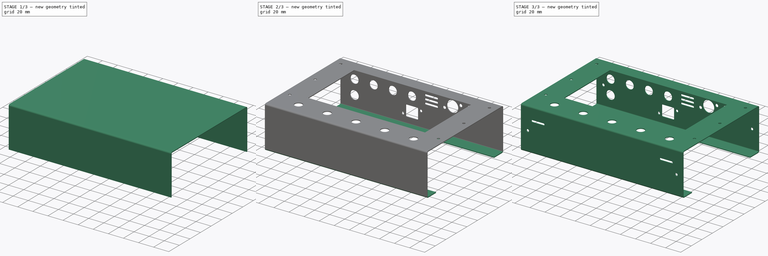
[diagram: build sequence overview — one tinted view per stage of 3, left to right]
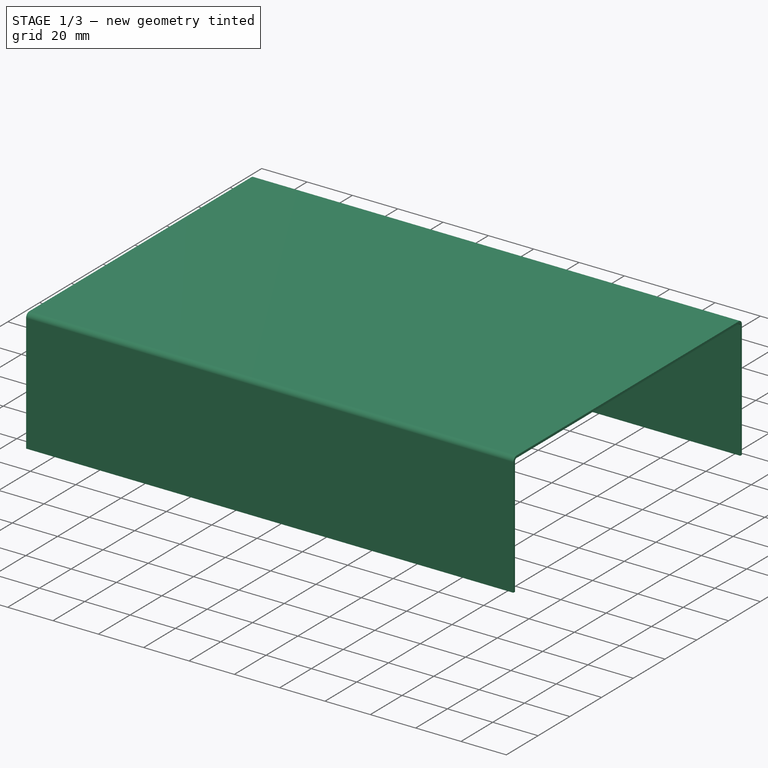
[diagram: stage 1 of 3 — iso view after this stage's code; geometry added in this stage tinted green]
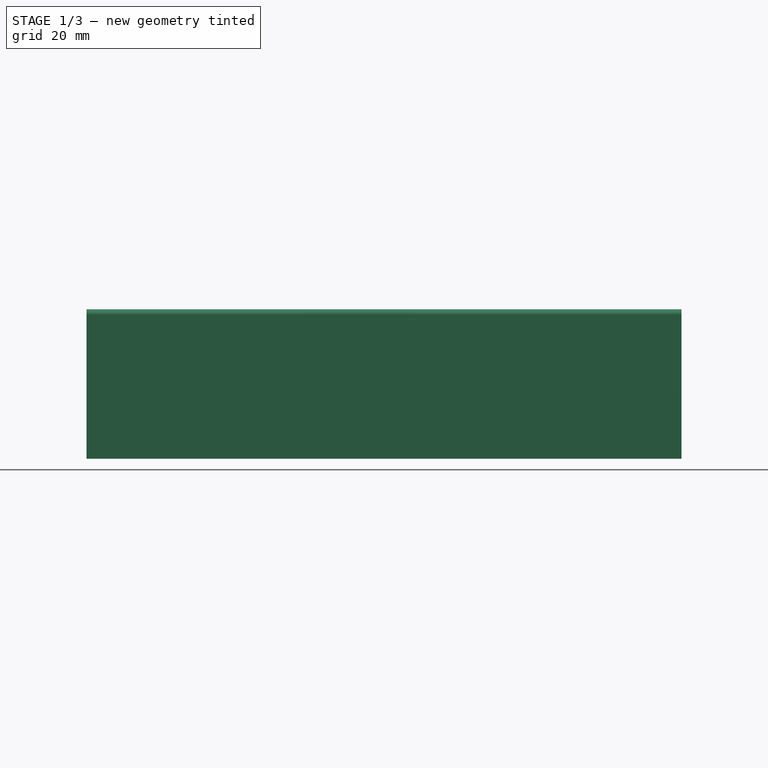
[diagram: stage 1 of 3 — front view after this stage's code; geometry added in this stage tinted green]
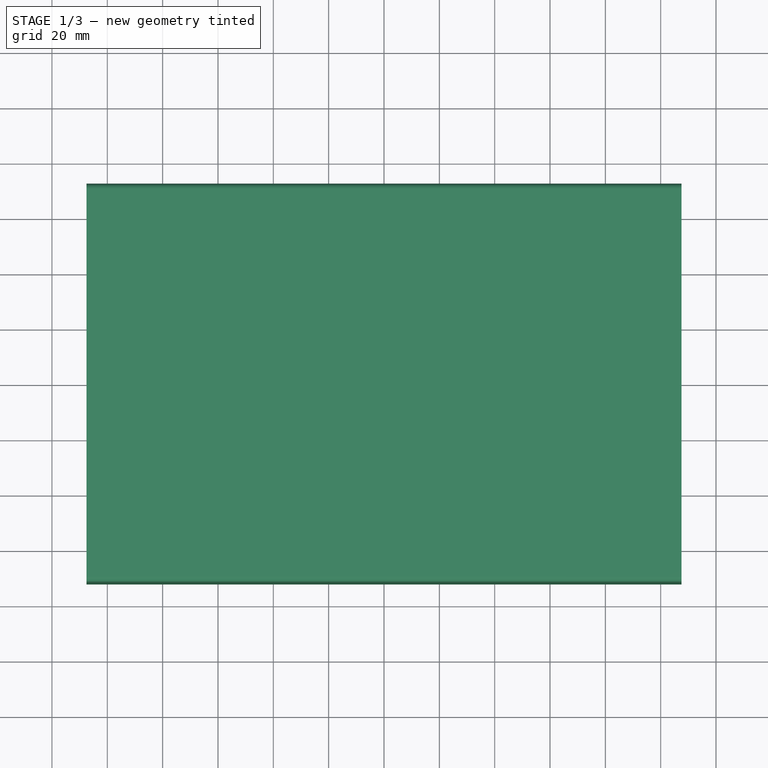
[diagram: stage 1 of 3 — top view after this stage's code; geometry added in this stage tinted green]
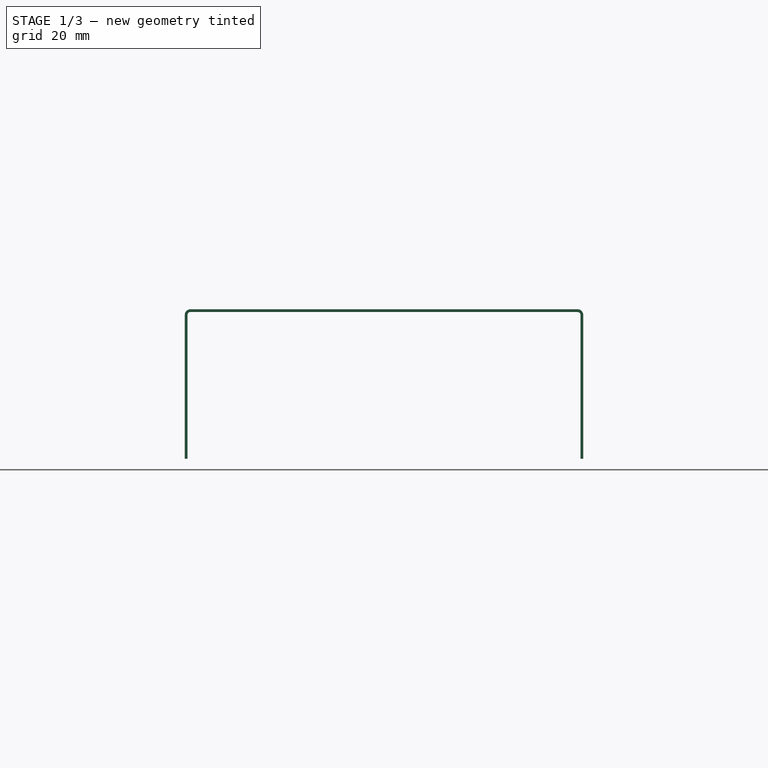
[diagram: stage 1 of 3 — right view after this stage's code; geometry added in this stage tinted green]
FCSTD DOCUMENT  (FreeCAD 0.17R13541 (Git))
Label: panel
License: All rights reserved
LicenseURL: http://en.wikipedia.org/wiki/All_rights_reserved
objects: Sketcher::SketchObject×5, PartDesign::Pocket×4, PartDesign::FeaturePython×2, PartDesign::Pad×1, PartDesign::Body×1
note: 18 computed .brp shape members not serialized (recipe doc carries the construction recipe); baked Part::Feature solids carry a one-line shape summary decoded from their .brp

FEATURE [Sketcher::SketchObject] Sketch
  MapMode = 5
  Support = -> [XY_Plane]
  sketch-geometry (4):
    g0: LineSegment StartX=-107.5 StartY=70 StartZ=0 EndX=107.5 EndY=70 EndZ=0
    g1: LineSegment StartX=107.5 StartY=70 StartZ=0 EndX=107.5 EndY=-70 EndZ=0
    g2: LineSegment StartX=107.5 StartY=-70 StartZ=0 EndX=-107.5 EndY=-70 EndZ=0
    g3: LineSegment StartX=-107.5 StartY=-70 StartZ=0 EndX=-107.5 EndY=70 EndZ=0
  constraints (12):
    c: Coincident(g0,g1)
    c: Coincident(g1,g2)
    c: Coincident(g2,g3)
    c: Coincident(g3,g0)
    c: Horizontal(g0)
    c: Horizontal(g2)
    c: Vertical(g1)
    c: Vertical(g3)
    c: Distance(g0) = 215
    c: DistanceX(g-2,g0) = 107.5
    c: Distance(g1) = 140
    c: DistanceY(g-1,g0) = 70
FEATURE [PartDesign::Pad] Pad
  Length = 1
  Length2 = 130
  Profile = -> Sketch
  Reversed = true
  Type = 0
FEATURE [PartDesign::FeaturePython] Bend  label="Bend-height"  # WARN: FeaturePython — macro-defined, semantics opaque (R4)
  AutoMiter = true
  BaseFeature = -> Pad
  BendType = 0
  LengthList = [52]
  RelifFactor = 0.7
  UseRelifFactor = false
  angle = 90
  baseObject = -> Pad [Edge3,Edge9]
  bendAList = [90]
  extend1 = 0
  extend2 = 0
  gap1 = 0
  gap2 = 0
  invert = false
  kfactor = 0.5
  length = 52
  miterangle1 = 0
  miterangle2 = 0
  offset = 0
  radius = 1
  reliefType = 0
  reliefd = 1
  reliefw = 0.8
  sketchflip = false
  sketchinvert = false
  unfold = false
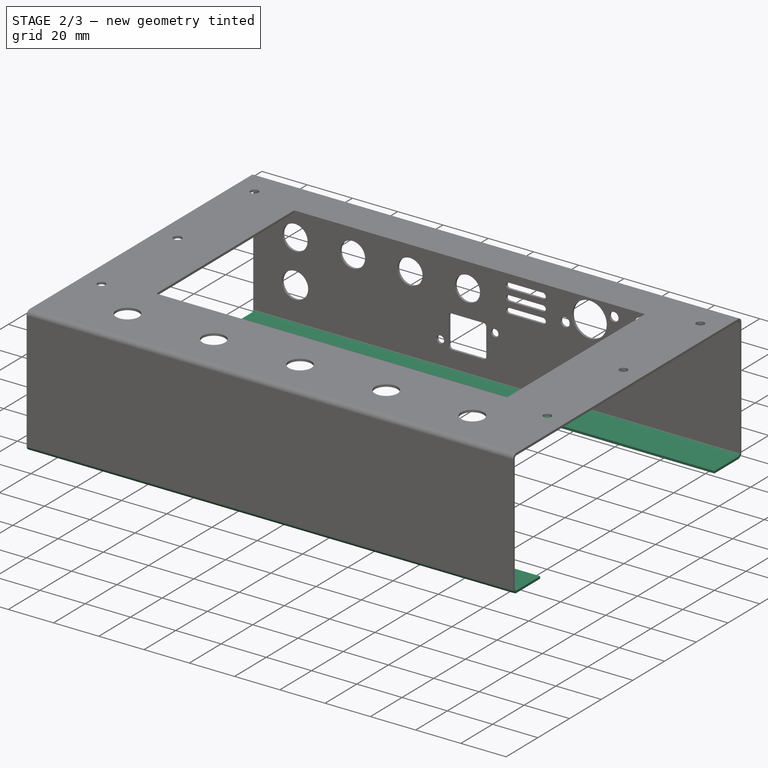
[diagram: stage 2 of 3 — iso view after this stage's code; geometry added in this stage tinted green]
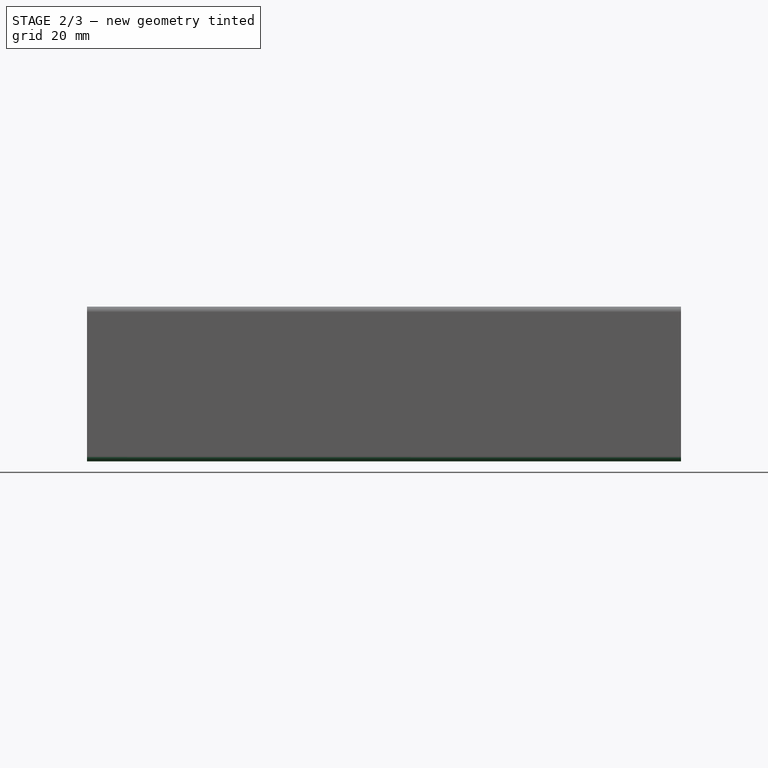
[diagram: stage 2 of 3 — front view after this stage's code; geometry added in this stage tinted green]
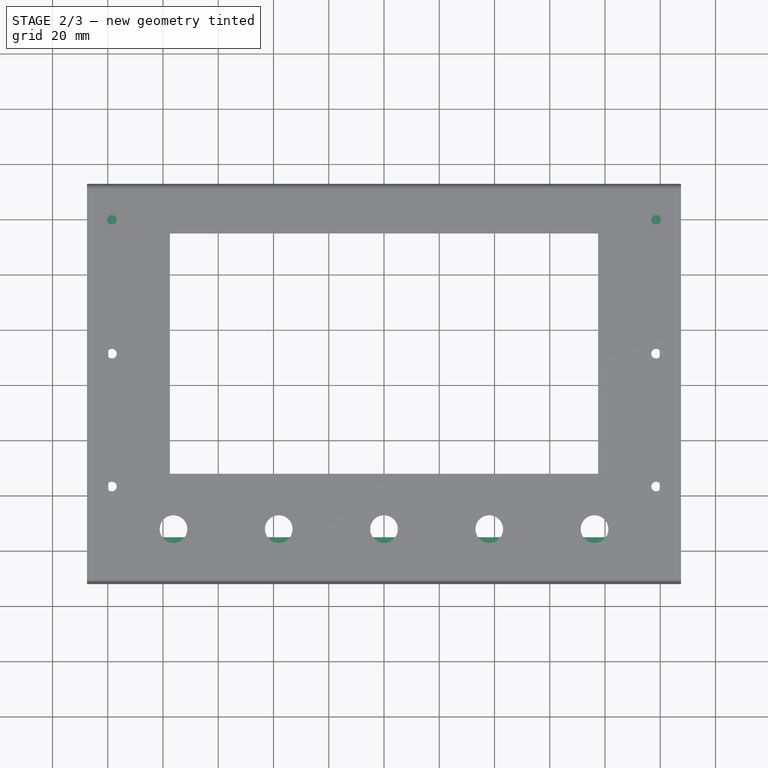
[diagram: stage 2 of 3 — top view after this stage's code; geometry added in this stage tinted green]
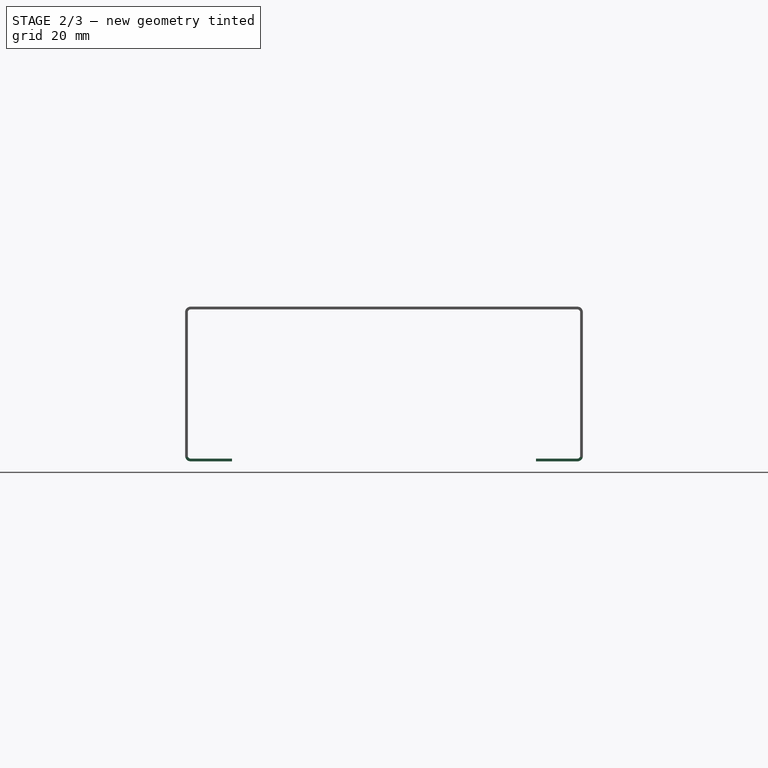
[diagram: stage 2 of 3 — right view after this stage's code; geometry added in this stage tinted green]
FEATURE [PartDesign::FeaturePython] Bend001  label="Bend-bottom"  # WARN: FeaturePython — macro-defined, semantics opaque (R4)
  AutoMiter = true
  BaseFeature = -> Bend
  BendType = 0
  LengthList = [15]
  RelifFactor = 0.7
  UseRelifFactor = false
  angle = 90
  baseObject = -> Bend [Edge4,Edge44]
  bendAList = [90]
  extend1 = 0
  extend2 = 0
  gap1 = 0
  gap2 = 0
  invert = false
  kfactor = 0.5
  length = 15
  miterangle1 = 0
  miterangle2 = 0
  offset = 0
  radius = 1
  reliefType = 0
  reliefd = 1
  reliefw = 0.8
  sketchflip = false
  sketchinvert = false
  unfold = false
FEATURE [Sketcher::SketchObject] Sketch001  label="holes-top"
  ExternalGeometry = -> [Bend001]
  MapMode = 5
  Support = -> [Bend001]
  sketch-geometry (16):
    g0: LineSegment StartX=-77.5 StartY=54 StartZ=0 EndX=77.5 EndY=54 EndZ=0
    g1: LineSegment StartX=77.5 StartY=54 StartZ=0 EndX=77.5 EndY=-33 EndZ=0
    g2: LineSegment StartX=77.5 StartY=-33 StartZ=0 EndX=-77.5 EndY=-33 EndZ=0
    g3: LineSegment StartX=-77.5 StartY=-33 StartZ=0 EndX=-77.5 EndY=54 EndZ=0
    g4: Circle CenterX=98.5 CenterY=58.95 CenterZ=0 NormalX=0 NormalY=0 NormalZ=1 AngleXU=0 Radius=1.75
    g5: Circle CenterX=-98.5 CenterY=58.95 CenterZ=0 NormalX=0 NormalY=0 NormalZ=1 AngleXU=0 Radius=1.75
    g6: Circle CenterX=-98.5 CenterY=-37.6 CenterZ=0 NormalX=0 NormalY=0 NormalZ=1 AngleXU=0 Radius=1.75
    g7: Circle CenterX=98.5 CenterY=-37.6 CenterZ=0 NormalX=0 NormalY=0 NormalZ=1 AngleXU=0 Radius=1.75
    g8: Circle CenterX=0 CenterY=-53 CenterZ=0 NormalX=0 NormalY=0 NormalZ=1 AngleXU=0 Radius=5
    g9: Circle CenterX=38.1 CenterY=-53 CenterZ=0 NormalX=0 NormalY=0 NormalZ=1 AngleXU=0 Radius=5
    g10: Circle CenterX=76.2 CenterY=-53 CenterZ=0 NormalX=0 NormalY=0 NormalZ=1 AngleXU=0 Radius=5
    g11: Circle CenterX=-38.1 CenterY=-53 CenterZ=0 NormalX=0 NormalY=0 NormalZ=1 AngleXU=0 Radius=5
    g12: Circle CenterX=-76.2 CenterY=-53 CenterZ=0 NormalX=0 NormalY=0 NormalZ=1 AngleXU=0 Radius=5
    g13: LineSegment [constr] StartX=-76.2 StartY=-53 StartZ=0 EndX=76.2 EndY=-53 EndZ=0
    g14: Circle CenterX=-98.5 CenterY=10.5 CenterZ=0 NormalX=0 NormalY=0 NormalZ=1 AngleXU=0 Radius=1.75
    g15: Circle CenterX=98.5 CenterY=10.5 CenterZ=0 NormalX=0 NormalY=0 NormalZ=1 AngleXU=0 Radius=1.75
  constraints (47):
    c: Coincident(g0,g1)
    c: Coincident(g1,g2)
    c: Coincident(g2,g3)
    c: Coincident(g3,g0)
    c: Horizontal(g0)
    c: Horizontal(g2)
    c: Vertical(g1)
    c: Vertical(g3)
    c: Distance(g0) = 155
    c: Distance(g1) = 87
    c: DistanceX(g-2,g0) = 77.5
    c: Distance(g2,g-3) = 37
    c: Radius(g4) = 1.75
    c: Equal(g4,g5)
    c: Equal(g5,g6)
    c: Vertical(g5,g6)
    c: Distance(g6,g-3) = 32.4
    c: Vertical(g7,g4)
    c: Horizontal(g7,g6)
    c: Equal(g7,g5)
    c: PointOnObject(g8,g-2)
    c: Distance(g8,g-3) = 17
    c: Radius(g8) = 5
    c: Equal(g12,g11)
    c: Equal(g11,g8)
    c: Equal(g8,g9)
    c: Equal(g9,g10)
    c: Coincident(g13,g12)
    c: Coincident(g13,g10)
    c: Horizontal(g13)
    c: PointOnObject(g9,g13)
    c: PointOnObject(g8,g13)
    c: PointOnObject(g11,g13)
    c: Distance(g12,g11) = 38.1
    c: Distance(g11,g8) = 38.1
    c: Distance(g8,g9) = 38.1
    c: Distance(g9,g10) = 38.1
    c: Distance(g5,g-3) = 128.95
    c: Horizontal(g4,g5)
    c: Vertical(g14,g5)
    c: Equal(g14,g5)
    c: Distance(g14,g0) = 43.5
    c: Vertical(g15,g4)
    c: Horizontal(g15,g14)
    c: Equal(g15,g14)
    c: Distance(g5,g-4) = 9
    c: Distance(g4,g-5) = 9
FEATURE [PartDesign::Pocket] Pocket  label="Pocket-top"
  BaseFeature = -> Bend001
  Length = 5
  Length2 = 100
  Profile = -> Sketch001
  Type = 0
FEATURE [Sketcher::SketchObject] Sketch002
  ExternalGeometry = -> [Pocket]
  MapMode = 5
  Placement = pos=(0,72,0) rot=(0,0.707107,0.707107;3.14159rad)
  Support = -> [Pocket]
  sketch-geometry (47):
    g0: Circle CenterX=89 CenterY=-20.5 CenterZ=0 NormalX=0 NormalY=0 NormalZ=1 AngleXU=0 Radius=5.5
    g1: Circle CenterX=63.6 CenterY=-20.5 CenterZ=0 NormalX=0 NormalY=0 NormalZ=1 AngleXU=0 Radius=5.5
    g2: Circle CenterX=38.2 CenterY=-20.5 CenterZ=0 NormalX=0 NormalY=0 NormalZ=1 AngleXU=0 Radius=5.5
    g3: Circle CenterX=12.8 CenterY=-20.5 CenterZ=0 NormalX=0 NormalY=0 NormalZ=1 AngleXU=0 Radius=5.5
    g4: LineSegment [constr] StartX=12.8 StartY=-20.5 StartZ=0 EndX=38.2 EndY=-20.5 EndZ=0
    g5: LineSegment [constr] StartX=38.2 StartY=-20.5 StartZ=0 EndX=63.6 EndY=-20.5 EndZ=0
    g6: LineSegment [constr] StartX=63.6 StartY=-20.5 StartZ=0 EndX=89 EndY=-20.5 EndZ=0
    g7: Circle CenterX=89 CenterY=-39.5 CenterZ=0 NormalX=0 NormalY=0 NormalZ=1 AngleXU=0 Radius=5.75
    g8: LineSegment [constr] StartX=89 StartY=-20.5 StartZ=0 EndX=89 EndY=-39.5 EndZ=0
    g9: Circle CenterX=-41.1 CenterY=-18.4 CenterZ=0 NormalX=0 NormalY=0 NormalZ=1 AngleXU=0 Radius=7.6
    g10: Circle CenterX=-66.5 CenterY=-18.4 CenterZ=0 NormalX=0 NormalY=0 NormalZ=1 AngleXU=0 Radius=7.6
    g11: Circle CenterX=-77.3065 CenterY=-14.4668 CenterZ=0 NormalX=0 NormalY=0 NormalZ=1 AngleXU=0 Radius=2
    g12: Circle CenterX=-55.6935 CenterY=-22.3332 CenterZ=0 NormalX=0 NormalY=0 NormalZ=1 AngleXU=0 Radius=2
    g13: Circle CenterX=-51.9065 CenterY=-14.4668 CenterZ=0 NormalX=0 NormalY=0 NormalZ=1 AngleXU=0 Radius=2
    g14: Circle CenterX=-30.2935 CenterY=-22.3332 CenterZ=0 NormalX=0 NormalY=0 NormalZ=1 AngleXU=0 Radius=2
    g15: LineSegment [constr] StartX=-77.3065 StartY=-14.4668 StartZ=0 EndX=-55.6935 EndY=-22.3332 EndZ=0
    g16: LineSegment [constr] StartX=-51.9065 StartY=-14.4668 StartZ=0 EndX=-30.2935 EndY=-22.3332 EndZ=0
    g17: LineSegment [constr] StartX=-66.5 StartY=-18.4 StartZ=0 EndX=-41.1 EndY=-18.4 EndZ=0
    g18: LineSegment [constr] StartX=-41.1 StartY=-26 StartZ=0 EndX=12.8 EndY=-26 EndZ=0
    g19: Circle CenterX=0.8 CenterY=-35 CenterZ=0 NormalX=0 NormalY=0 NormalZ=1 AngleXU=0 Radius=1.625
    g20: Circle CenterX=24.8 CenterY=-44 CenterZ=0 NormalX=0 NormalY=0 NormalZ=1 AngleXU=0 Radius=1.625
    g21: LineSegment StartX=5.905 StartY=-32.225 StartZ=0 EndX=19.695 EndY=-32.225 EndZ=0
    g22: LineSegment StartX=21.075 StartY=-33.605 StartZ=0 EndX=21.075 EndY=-45.395 EndZ=0
    g23: LineSegment StartX=19.695 StartY=-46.775 StartZ=0 EndX=5.905 EndY=-46.775 EndZ=0
    g24: LineSegment StartX=4.525 StartY=-45.395 StartZ=0 EndX=4.525 EndY=-33.605 EndZ=0
    g25: ArcOfCircle CenterX=5.905 CenterY=-33.605 CenterZ=0 NormalX=0 NormalY=0 NormalZ=1 AngleXU=0 Radius=1.38 StartAngle=1.5708 EndAngle=3.14159
    g26: ArcOfCircle CenterX=5.905 CenterY=-45.395 CenterZ=0 NormalX=0 NormalY=0 NormalZ=1 AngleXU=0 Radius=1.38 StartAngle=3.14159 EndAngle=4.71239
    g27: ArcOfCircle CenterX=19.695 CenterY=-45.395 CenterZ=0 NormalX=0 NormalY=0 NormalZ=1 AngleXU=0 Radius=1.38 StartAngle=4.71239 EndAngle=6.28319
    g28: ArcOfCircle CenterX=19.695 CenterY=-33.605 CenterZ=0 NormalX=0 NormalY=0 NormalZ=1 AngleXU=0 Radius=1.38 StartAngle=0 EndAngle=1.5708
    g29: LineSegment [constr] StartX=-107.5 StartY=-39.5 StartZ=0 EndX=107.5 EndY=-39.5 EndZ=0
    g30: LineSegment [constr] StartX=-20.5 StartY=-19.45 StartZ=0 EndX=-5.5 EndY=-19.45 EndZ=0
    g31: LineSegment [constr] StartX=-20.5 StartY=-24.45 StartZ=0 EndX=-5.5 EndY=-24.45 EndZ=0
    g32: ArcOfCircle CenterX=-20.5 CenterY=-14.45 CenterZ=0 NormalX=0 NormalY=0 NormalZ=1 AngleXU=0 Radius=1.25 StartAngle=1.5708 EndAngle=4.71239
    g33: ArcOfCircle CenterX=-20.5 CenterY=-19.45 CenterZ=0 NormalX=0 NormalY=0 NormalZ=1 AngleXU=0 Radius=1.25 StartAngle=1.5708 EndAngle=4.71239
    g34: ArcOfCircle CenterX=-20.5 CenterY=-24.45 CenterZ=0 NormalX=0 NormalY=0 NormalZ=1 AngleXU=0 Radius=1.25 StartAngle=1.5708 EndAngle=4.71239
    g35: ArcOfCircle CenterX=-5.5 CenterY=-14.45 CenterZ=0 NormalX=0 NormalY=0 NormalZ=1 AngleXU=0 Radius=1.25 StartAngle=4.71239 EndAngle=7.85398
    g36: ArcOfCircle CenterX=-5.5 CenterY=-19.45 CenterZ=0 NormalX=0 NormalY=0 NormalZ=1 AngleXU=0 Radius=1.25 StartAngle=4.71239 EndAngle=7.85398
    g37: ArcOfCircle CenterX=-5.5 CenterY=-24.45 CenterZ=0 NormalX=0 NormalY=0 NormalZ=1 AngleXU=0 Radius=1.25 StartAngle=4.71239 EndAngle=7.85398
    g38: LineSegment StartX=-20.5 StartY=-13.2 StartZ=0 EndX=-5.5 EndY=-13.2 EndZ=0
    g39: LineSegment StartX=-20.5 StartY=-15.7 StartZ=0 EndX=-5.5 EndY=-15.7 EndZ=0
    g40: LineSegment StartX=-20.5 StartY=-18.2 StartZ=0 EndX=-5.5 EndY=-18.2 EndZ=0
    g41: LineSegment StartX=-20.5 StartY=-20.7 StartZ=0 EndX=-5.5 EndY=-20.7 EndZ=0
    g42: LineSegment StartX=-20.5 StartY=-23.2 StartZ=0 EndX=-5.5 EndY=-23.2 EndZ=0
    g43: LineSegment StartX=-20.5 StartY=-25.7 StartZ=0 EndX=-5.5 EndY=-25.7 EndZ=0
    g44: LineSegment [constr] StartX=-13 StartY=-14.45 StartZ=0 EndX=-13 EndY=-24.45 EndZ=0
    g45: LineSegment [constr] StartX=-13 StartY=-14.45 StartZ=0 EndX=-20.5 EndY=-14.45 EndZ=0
    g46: LineSegment [constr] StartX=-13 StartY=-14.45 StartZ=0 EndX=-5.5 EndY=-14.45 EndZ=0
  constraints (135):
    c: Radius(g3) = 5.5
    c: Equal(g3,g2)
    c: Equal(g3,g1)
    c: Equal(g3,g0)
    c: Horizontal(g4)
    c: Coincident(g5,g4)
    c: Coincident(g3,g4)
    c: Coincident(g2,g4)
    c: Coincident(g1,g5)
    c: Coincident(g1,g6)
    c: Coincident(g0,g6)
    c: Horizontal(g5)
    c: Horizontal(g6)
    c: Equal(g4,g5)
    c: Equal(g5,g6)
    c: Distance(g4) = 25.4
    c: DistanceX(g0,g-3) = 18.5
    c: DistanceY(g0,g-3) = 18.5
    c: Radius(g7) = 5.75
    c: Coincident(g0,g8)
    c: Coincident(g7,g8)
    c: Vertical(g8)
    c: Distance(g8) = 19
    c: Radius(g11) = 2
    c: Equal(g11,g12)
    c: Equal(g11,g13)
    c: Equal(g11,g14)
    c: PointOnObject(g10,g15)
    c: Coincident(g15,g11)
    c: Coincident(g15,g12)
    c: Distance(g11,g12) = 23
    c: Distance(g10,g11) = 11.5
    c: Coincident(g16,g14)
    c: Coincident(g16,g13)
    c: PointOnObject(g9,g16)
    c: Distance(g14,g13) = 23
    c: Distance(g9,g14) = 11.5
    c: Parallel(g15,g16)
    c: Coincident(g17,g9)
    c: Coincident(g17,g10)
    c: Horizontal(g17)
    c: Radius(g9) = 7.6
    c: Equal(g9,g10)
    c: Equal(g4,g17)
    c: Horizontal(g18)
    c: Tangent(g18,g3)
    c: DistanceX(g-3,g10) = 41
    c: Horizontal(g21)
    c: Horizontal(g23)
    c: Vertical(g22)
    c: Vertical(g24)
    c: Tangent(g21,g25) = 1.5708
    c: Tangent(g24,g25) = 1.5708
    c: Tangent(g23,g26) = 1.5708
    c: Tangent(g24,g26) = 1.5708
    c: Tangent(g22,g27) = 1.5708
    c: Tangent(g23,g27) = 1.5708
    c: Tangent(g21,g28) = 1.5708
    c: Tangent(g22,g28) = 1.5708
    c: Radius(g25) = 1.38
    c: Equal(g25,g28)
    c: Equal(g25,g27)
    c: Equal(g25,g26)
    c: Distance(g24,g22) = 16.55
    c: Distance(g21,g23) = 14.55
    c: DistanceX(g19,g20) = 24
    c: Radius(g19) = 1.625
    c: Equal(g19,g20)
    c: DistanceY(g20,g19) = 9
    c: DistanceX(g22,g20) = 3.725
    c: DistanceY(g23,g20) = 2.775
    c: Vertical(g18,g3)
    c: Vertical(g18,g9)
    c: Tangent(g18,g9) = -1.5708
    c: Angle(g17,g16) = 2.79253
    c: Horizontal(g29)
    c: PointOnObject(g7,g29)
    c: Distance(g21,g29) = 7.275
    c: DistanceX(g3,g22) = 8.275
    c: Vertical(g30,g31)
    c: Vertical(g35,g30)
    c: Horizontal(g31)
    c: Horizontal(g30)
    c: Distance(g32,g30) = 5
    c: Distance(g30,g31) = 5
    c: Coincident(g35,g38)
    c: Coincident(g32,g39)
    c: Coincident(g32,g38)
    c: Horizontal(g38)
    c: Horizontal(g39)
    c: Horizontal(g40)
    c: Horizontal(g41)
    c: Horizontal(g42)
    c: Horizontal(g43)
    c: Vertical(g32,g32)
    c: Vertical(g32,g33)
    c: Vertical(g33,g33)
    c: Vertical(g33,g33)
    c: Vertical(g33,g34)
    c: Vertical(g34,g34)
    c: Vertical(g34,g38)
    c: Vertical(g35,g35)
    c: Vertical(g35,g36)
    c: Coincident(g36,g40)
    c: Coincident(g36,g41)
    c: Coincident(g35,g39)
    c: Coincident(g37,g42)
    c: Coincident(g37,g43)
    c: Vertical(g36,g36)
    c: Vertical(g36,g37)
    c: Vertical(g37,g31)
    c: Vertical(g31,g37)
    c: Coincident(g30,g36)
    c: Coincident(g31,g37)
    c: Vertical(g35,g36)
    c: Coincident(g33,g40)
    c: Coincident(g33,g41)
    c: Coincident(g34,g42)
    c: Coincident(g34,g43)
    c: Radius(g32) = 1.25
    c: Equal(g32,g33)
    c: Equal(g32,g34)
    c: Coincident(g30,g33)
    c: Coincident(g31,g34)
    c: DistanceY(g30,g9) = 1.05
    c: PointOnObject(g44,g31)
    c: Vertical(g44)
    c: Coincident(g44,g45)
    c: Coincident(g44,g46)
    c: Coincident(g35,g46)
    c: Coincident(g32,g45)
    c: Horizontal(g45)
    c: Equal(g45,g46)
    c: DistanceX(g-2,g44) = -13
    c: DistanceX(g32,g35) = 15  'vent-width'
FEATURE [PartDesign::Pocket] Pocket001  label="Pocket-back"
  BaseFeature = -> Pocket
  Length = 5
  Length2 = 100
  Profile = -> Sketch002
  Type = 0
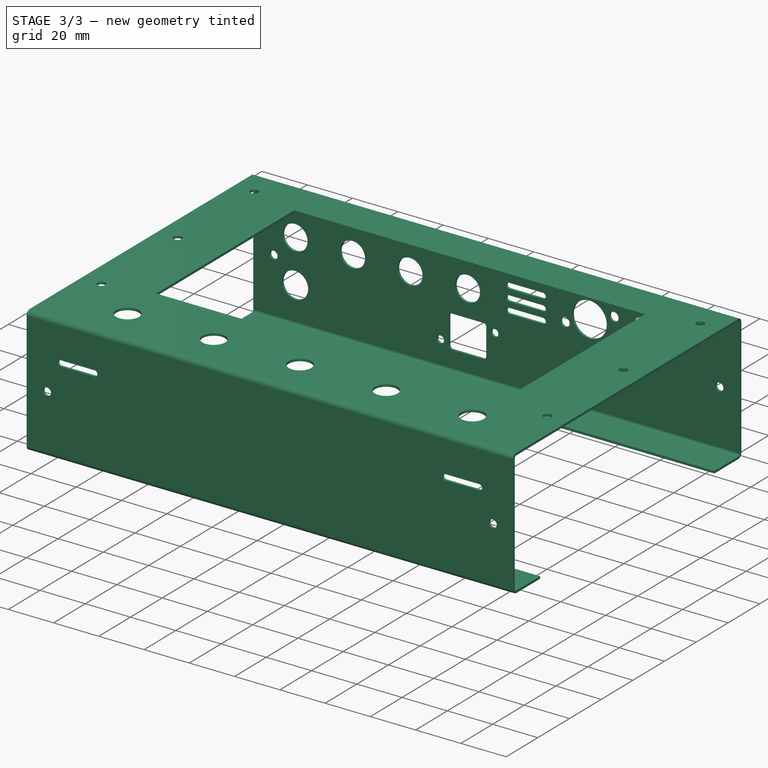
[diagram: stage 3 of 3 — iso view after this stage's code; geometry added in this stage tinted green]
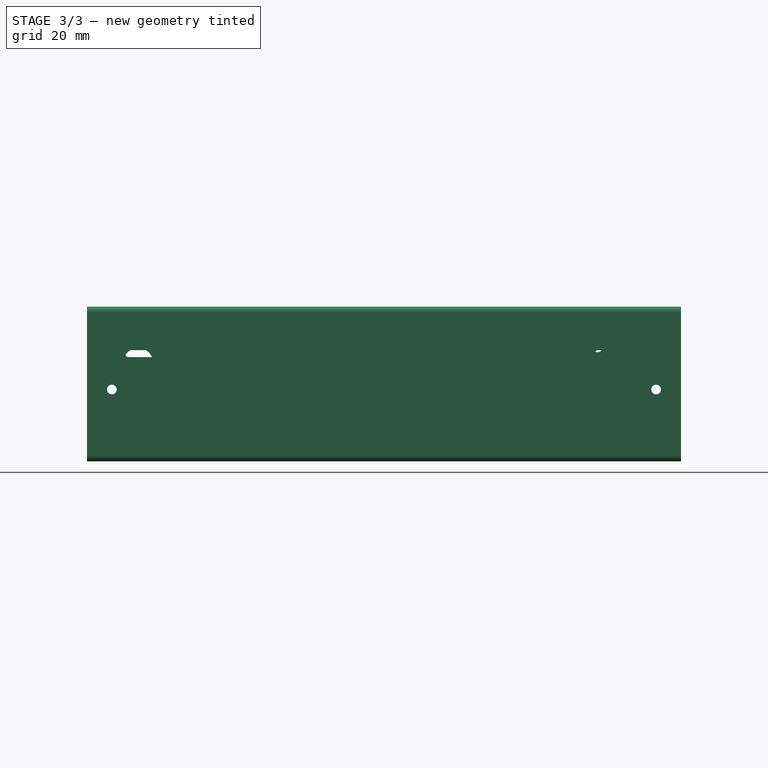
[diagram: stage 3 of 3 — front view after this stage's code; geometry added in this stage tinted green]
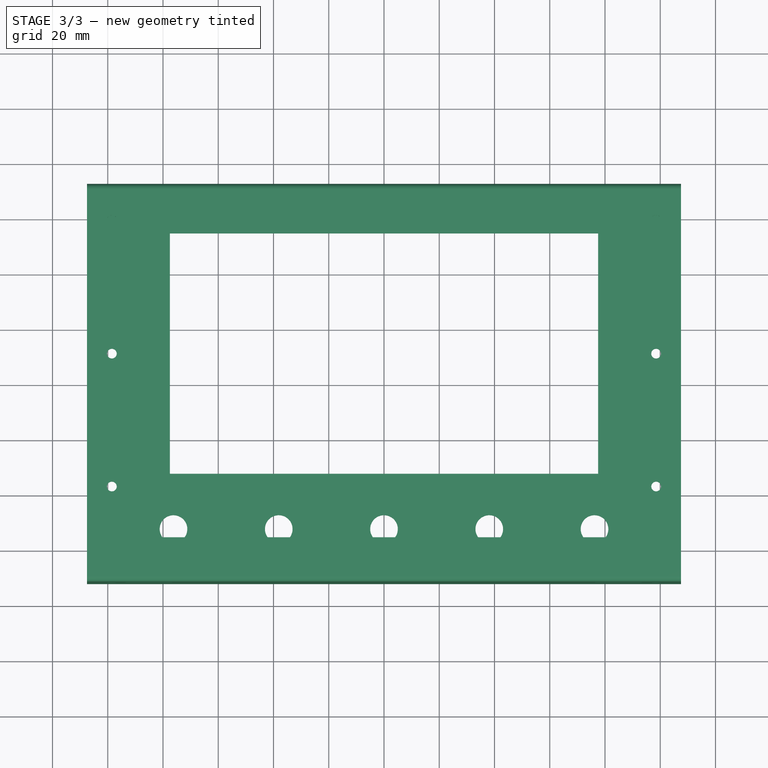
[diagram: stage 3 of 3 — top view after this stage's code; geometry added in this stage tinted green]
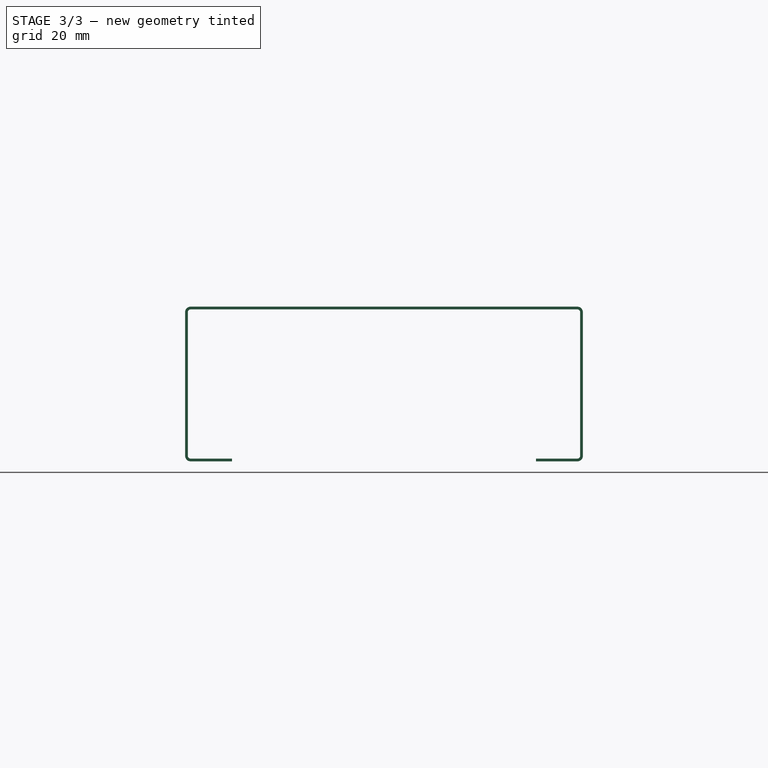
[diagram: stage 3 of 3 — right view after this stage's code; geometry added in this stage tinted green]
FEATURE [Sketcher::SketchObject] Sketch003
  ExternalGeometry = -> [Pocket001]
  MapMode = 5
  Placement = pos=(0,-72,0) rot=(1,0,0;1.5708rad)
  Support = -> [Pocket001]
  sketch-geometry (9):
    g0: LineSegment [constr] StartX=107.5 StartY=-17 StartZ=0 EndX=-107.5 EndY=-17 EndZ=0
    g1: ArcOfCircle CenterX=77.5 CenterY=-17 CenterZ=0 NormalX=0 NormalY=0 NormalZ=1 AngleXU=0 Radius=1.25 StartAngle=1.5708 EndAngle=4.71239
    g2: ArcOfCircle CenterX=92.5 CenterY=-17 CenterZ=0 NormalX=0 NormalY=0 NormalZ=1 AngleXU=0 Radius=1.25 StartAngle=4.71239 EndAngle=7.85398
    g3: ArcOfCircle CenterX=-92.5 CenterY=-17 CenterZ=0 NormalX=0 NormalY=0 NormalZ=1 AngleXU=0 Radius=1.25 StartAngle=1.5708 EndAngle=4.71239
    g4: ArcOfCircle CenterX=-77.5 CenterY=-17 CenterZ=0 NormalX=0 NormalY=0 NormalZ=1 AngleXU=0 Radius=1.25 StartAngle=4.71239 EndAngle=7.85398
    g5: LineSegment StartX=-92.5 StartY=-15.75 StartZ=0 EndX=-77.5 EndY=-15.75 EndZ=0
    g6: LineSegment StartX=-92.5 StartY=-18.25 StartZ=0 EndX=-77.5 EndY=-18.25 EndZ=0
    g7: LineSegment StartX=77.5 StartY=-15.75 StartZ=0 EndX=92.5 EndY=-15.75 EndZ=0
    g8: LineSegment StartX=77.5 StartY=-18.25 StartZ=0 EndX=92.5 EndY=-18.25 EndZ=0
  constraints (36):
    c: Horizontal(g0)
    c: Coincident(g1,g7)
    c: Coincident(g1,g8)
    c: Coincident(g2,g7)
    c: Coincident(g2,g8)
    c: Coincident(g3,g5)
    c: Coincident(g3,g6)
    c: Coincident(g4,g5)
    c: Coincident(g4,g6)
    c: Vertical(g4,g4)
    c: Vertical(g4,g4)
    c: Vertical(g4,g5)
    c: Vertical(g5,g6)
    c: Vertical(g3,g3)
    c: Vertical(g3,g5)
    c: Vertical(g2,g2)
    c: Vertical(g2,g2)
    c: Vertical(g2,g7)
    c: Vertical(g7,g8)
    c: Vertical(g1,g1)
    c: Vertical(g1,g7)
    c: PointOnObject(g4,g0)
    c: PointOnObject(g3,g0)
    c: PointOnObject(g1,g0)
    c: PointOnObject(g2,g0)
    c: Horizontal(g7)
    c: Horizontal(g5)
    c: Radius(g3) = 1.25
    c: Equal(g3,g1)
    c: Distance(g3,g4) = 15
    c: Distance(g1,g2) = 15
    c: PointOnObject(g0,g-4)
    c: PointOnObject(g0,g-3)
    c: Distance(g0,g-3) = 15
    c: Distance(g2,g-3) = 15
    c: Distance(g3,g-4) = 15
FEATURE [PartDesign::Pocket] Pocket002  label="Pocket-front"
  BaseFeature = -> Pocket001
  Length = 5
  Length2 = 100
  Profile = -> Sketch003
  Type = 0
FEATURE [Sketcher::SketchObject] Sketch004
  ExternalGeometry = -> [Pocket002]
  MapMode = 5
  Placement = pos=(0,-72,0) rot=(1,0,0;1.5708rad)
  Support = -> [Pocket002]
  sketch-geometry (3):
    g0: Circle CenterX=-98.5 CenterY=-30 CenterZ=0 NormalX=0 NormalY=0 NormalZ=1 AngleXU=0 Radius=1.75
    g1: Circle CenterX=98.5 CenterY=-30 CenterZ=0 NormalX=0 NormalY=0 NormalZ=1 AngleXU=0 Radius=1.75
    g2: LineSegment [constr] StartX=-98.5 StartY=-30 StartZ=0 EndX=98.5 EndY=-30 EndZ=0
  constraints (8):
    c: Horizontal(g2)
    c: Coincident(g2,g1)
    c: Coincident(g2,g0)
    c: Distance(g1,g-4) = 9
    c: Distance(g0,g-3) = 9
    c: Radius(g0) = 1.75
    c: Equal(g0,g1)
    c: Distance(g-4,g2) = 28
FEATURE [PartDesign::Pocket] Pocket003
  BaseFeature = -> Pocket002
  Length = 5
  Length2 = 100
  Profile = -> Sketch004
  Type = 1
FEATURE [PartDesign::Body] Body  label="bended-panel"
  Group = -> [Sketch,Pad,Bend,Bend001,Sketch001,Pocket,Sketch002,Pocket001,Sketch003,Pocket002,Sketch004,Pocket003]
  Origin = -> Origin
  Tip = -> Pocket003
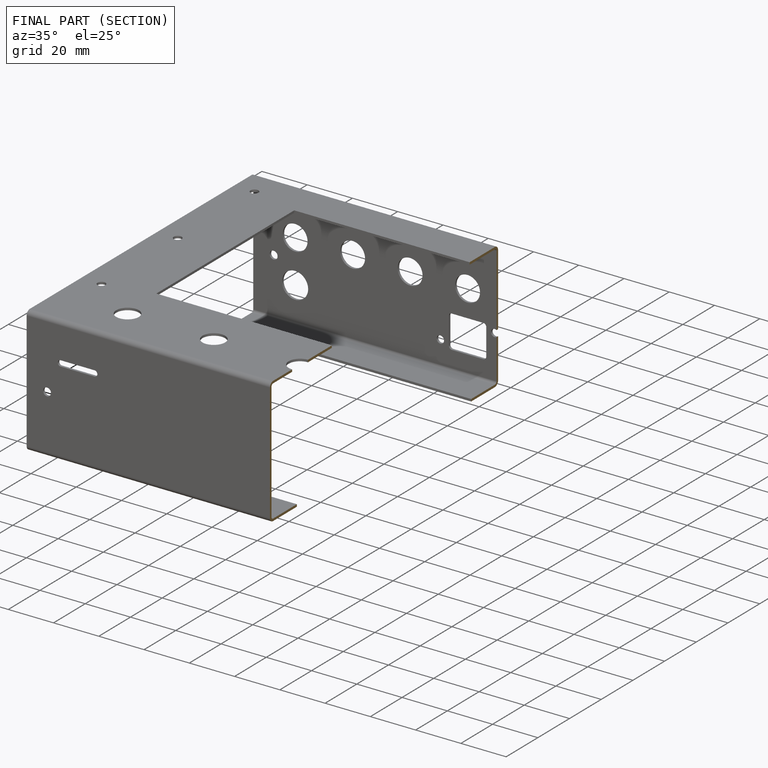
[diagram: finished part — half-section view (interior)]
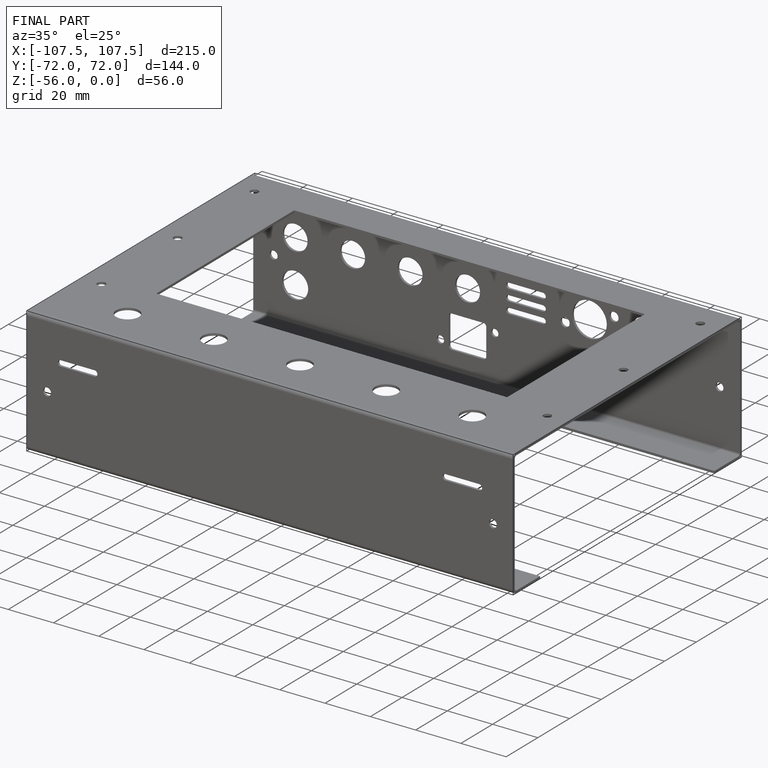
[diagram: finished part — iso view with bounding-box wireframe]
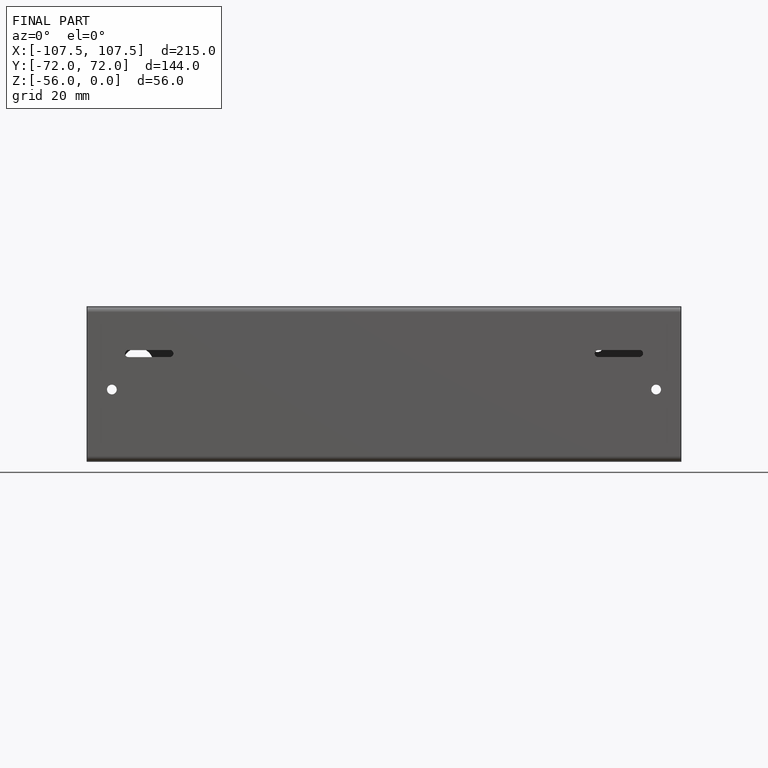
[diagram: finished part — front view with bounding-box wireframe]
